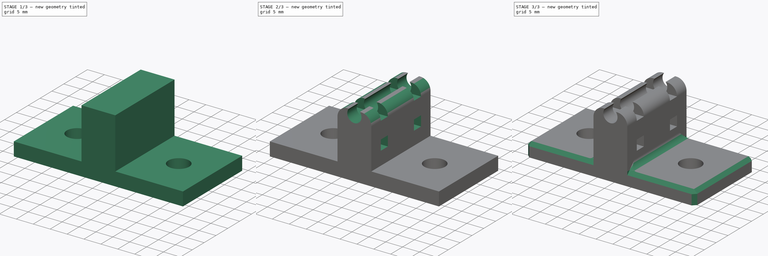
[diagram: build sequence overview — one tinted view per stage of 3, left to right]
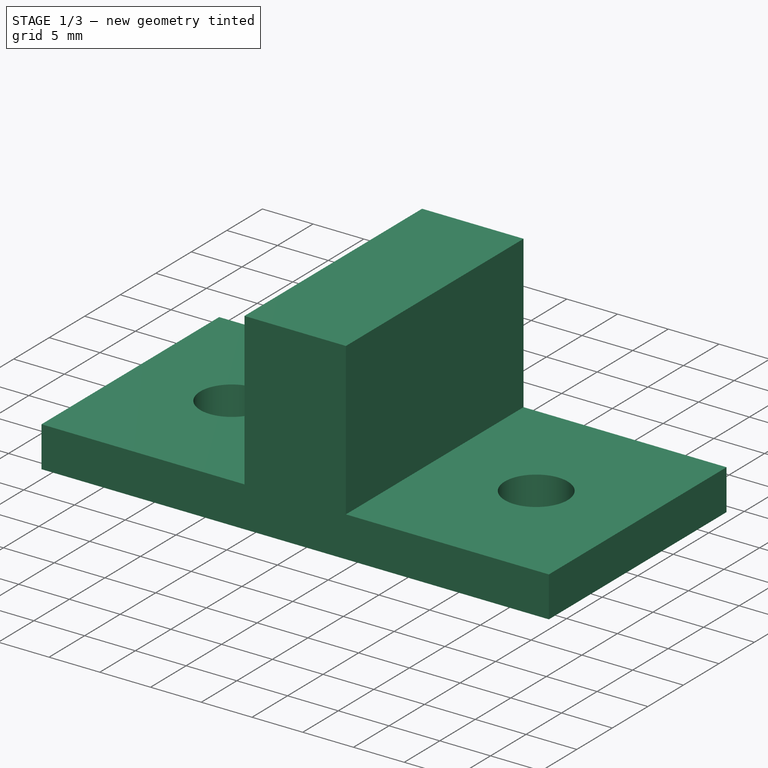
[diagram: stage 1 of 3 — iso view after this stage's code; geometry added in this stage tinted green]
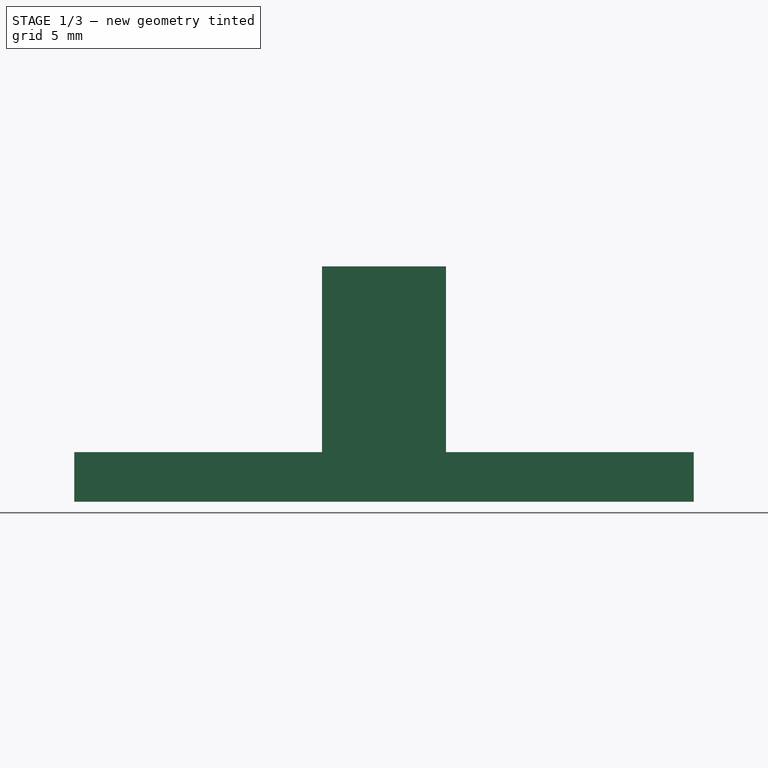
[diagram: stage 1 of 3 — front view after this stage's code; geometry added in this stage tinted green]
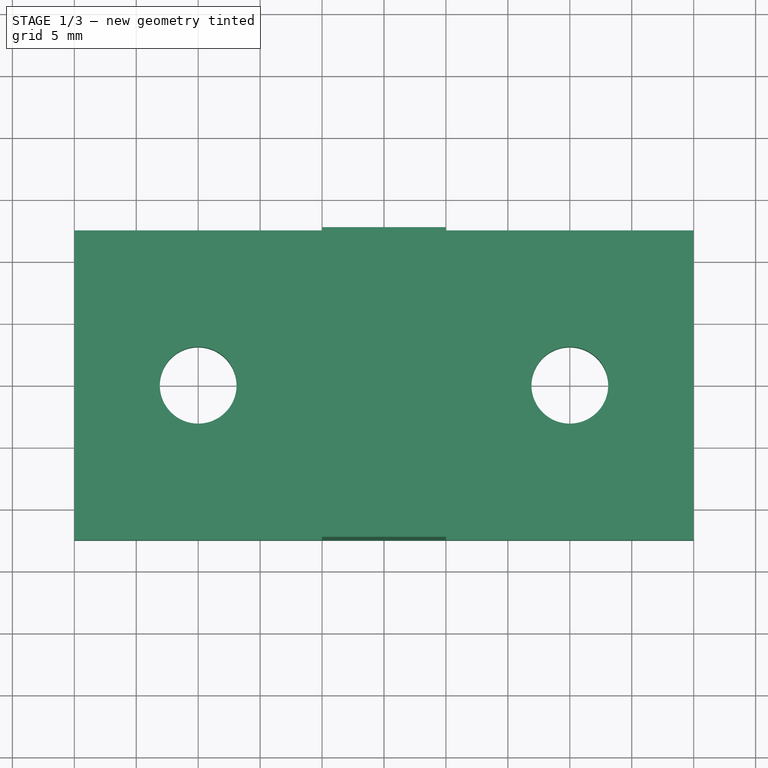
[diagram: stage 1 of 3 — top view after this stage's code; geometry added in this stage tinted green]
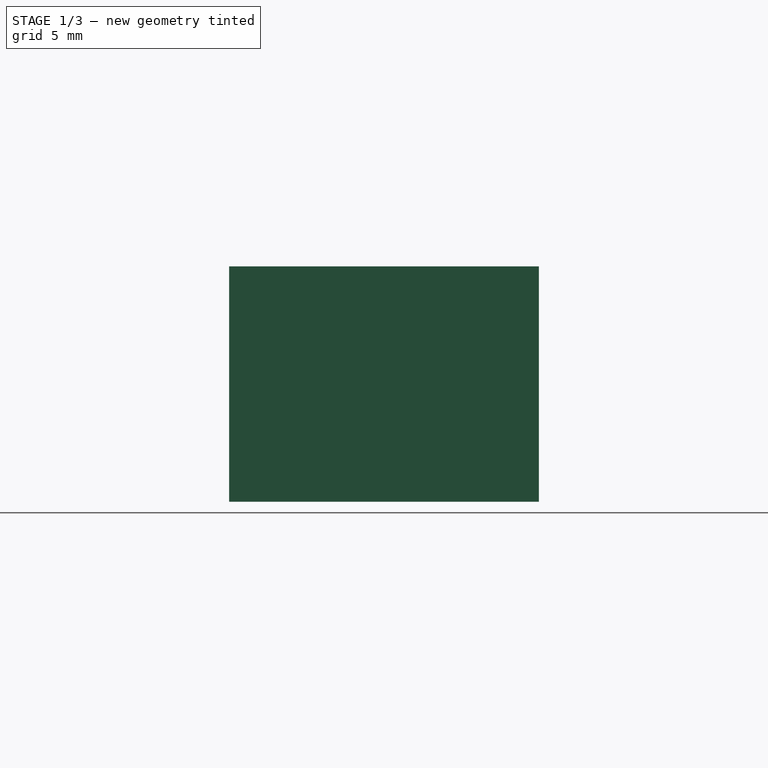
[diagram: stage 1 of 3 — right view after this stage's code; geometry added in this stage tinted green]
FCSTD DOCUMENT  (FreeCAD 0.20R)
Label: filament_tube_holder
License: All rights reserved
LicenseURL: http://en.wikipedia.org/wiki/All_rights_reserved
objects: Sketcher::SketchObject×4, PartDesign::Pad×2, PartDesign::Pocket×2, PartDesign::Fillet×2, PartDesign::Chamfer×1, PartDesign::Body×1
note: 19 computed .brp shape members not serialized (recipe doc carries the construction recipe); baked Part::Feature solids carry a one-line shape summary decoded from their .brp

FEATURE [Sketcher::SketchObject] Sketch
  FullyConstrained = true
  MapMode = 5
  Support = -> [XY_Plane]
  sketch-geometry (6):
    g0: LineSegment StartX=-25 StartY=12.5 StartZ=0 EndX=25 EndY=12.5 EndZ=0
    g1: LineSegment StartX=25 StartY=12.5 StartZ=0 EndX=25 EndY=-12.5 EndZ=0
    g2: LineSegment StartX=25 StartY=-12.5 StartZ=0 EndX=-25 EndY=-12.5 EndZ=0
    g3: LineSegment StartX=-25 StartY=-12.5 StartZ=0 EndX=-25 EndY=12.5 EndZ=0
    g4: Circle CenterX=-15 CenterY=0 CenterZ=0 NormalX=0 NormalY=0 NormalZ=1 AngleXU=0 Radius=3.1
    g5: Circle CenterX=15 CenterY=0 CenterZ=0 NormalX=0 NormalY=0 NormalZ=1 AngleXU=0 Radius=3.1
  constraints (15):
    c: Coincident(g0,g1)
    c: Coincident(g1,g2)
    c: Coincident(g2,g3)
    c: Coincident(g3,g0)
    c: Horizontal(g0)
    c: Vertical(g3)
    c: PointOnObject(g4,g-1)
    c: Symmetric(g5,g4,g-2)
    c: Equal(g5,g4)
    c: Diameter(g5) = 6.2
    c: Symmetric(g1,g2,g-2)
    c: Symmetric(g0,g1,g-1)
    c: DistanceY(g3,g3) = 25
    c: Distance(g4,g5) = 30
    c: Distance(g0) = 50
FEATURE [PartDesign::Pad] Pad
  Direction = (0,0,1)
  Length = 4
  Length2 = 10
  Profile = -> Sketch
  ReferenceAxis = -> Sketch [N_Axis]
  Type = 0
FEATURE [Sketcher::SketchObject] Sketch001
  ExternalGeometry = -> [Pad]
  FullyConstrained = true
  MapMode = 5
  Placement = pos=(0,0,4) rot=(0,0,1;0rad)
  Support = -> [Pad]
  sketch-geometry (4):
    g0: LineSegment StartX=-5 StartY=12.5 StartZ=0 EndX=5 EndY=12.5 EndZ=0
    g1: LineSegment StartX=5 StartY=12.5 StartZ=0 EndX=5 EndY=-12.5 EndZ=0
    g2: LineSegment StartX=5 StartY=-12.5 StartZ=0 EndX=-5 EndY=-12.5 EndZ=0
    g3: LineSegment StartX=-5 StartY=-12.5 StartZ=0 EndX=-5 EndY=12.5 EndZ=0
  constraints (11):
    c: Coincident(g0,g1)
    c: Coincident(g1,g2)
    c: Coincident(g2,g3)
    c: Coincident(g3,g0)
    c: Horizontal(g2)
    c: Vertical(g1)
    c: Vertical(g3)
    c: PointOnObject(g0,g-3)
    c: PointOnObject(g1,g-4)
    c: Symmetric(g0,g0,g-2)
    c: DistanceX(g0,g0) = 10
FEATURE [PartDesign::Pad] Pad001
  BaseFeature = -> Pad
  Direction = (0,0,1)
  Length = 15
  Length2 = 10
  Profile = -> Sketch001
  ReferenceAxis = -> Sketch001 [N_Axis]
  Type = 0
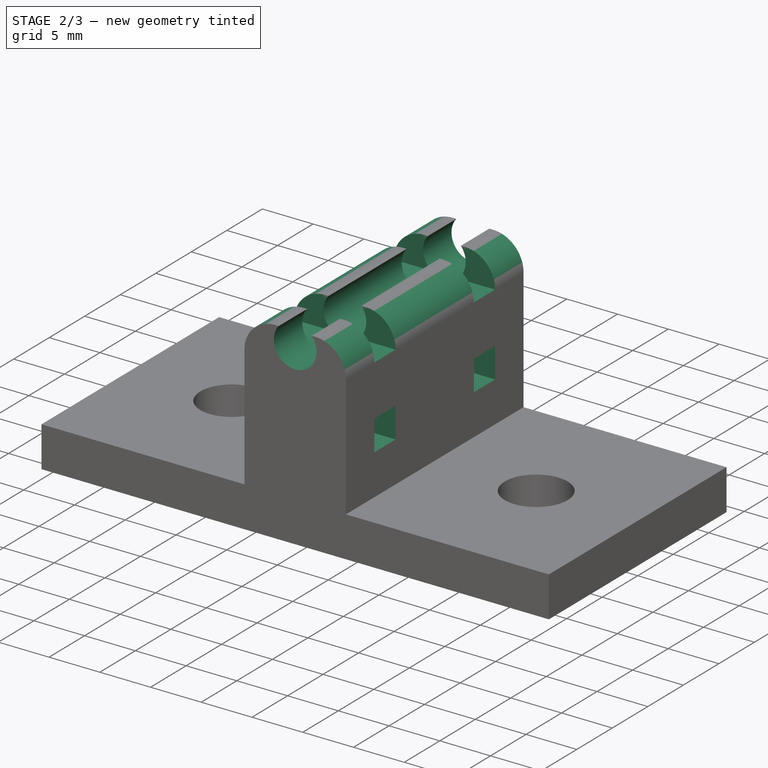
[diagram: stage 2 of 3 — iso view after this stage's code; geometry added in this stage tinted green]
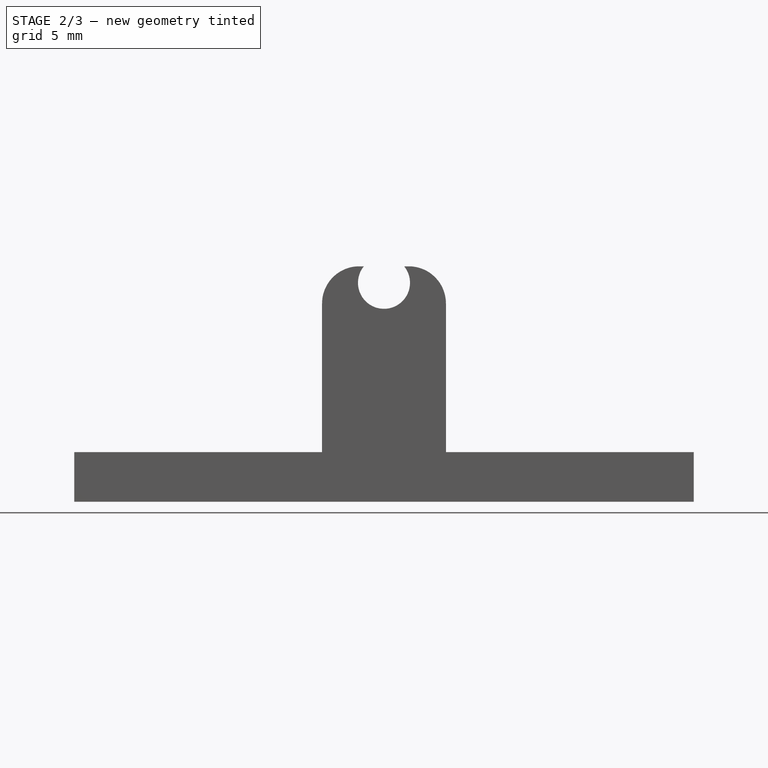
[diagram: stage 2 of 3 — front view after this stage's code; geometry added in this stage tinted green]
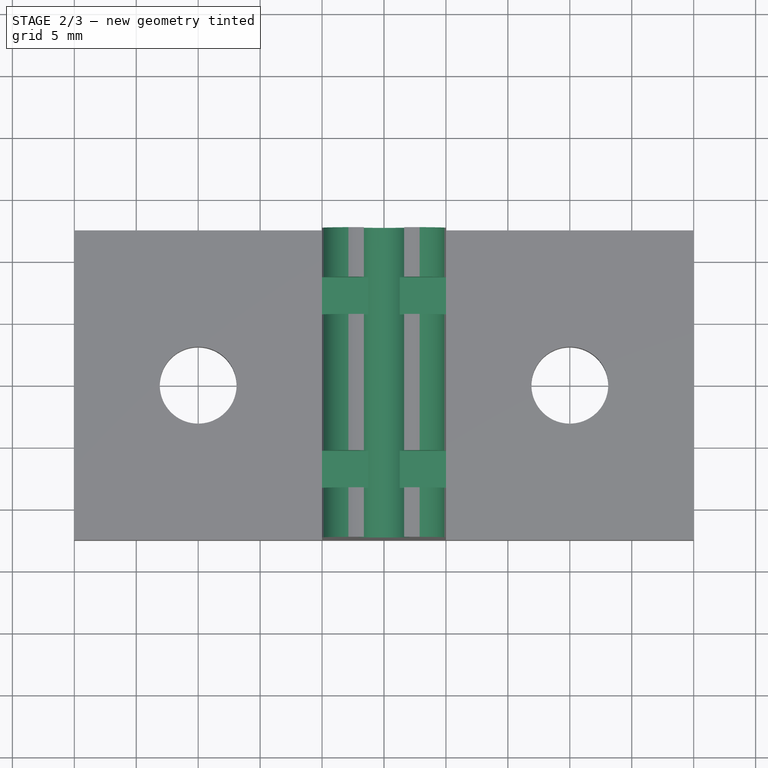
[diagram: stage 2 of 3 — top view after this stage's code; geometry added in this stage tinted green]
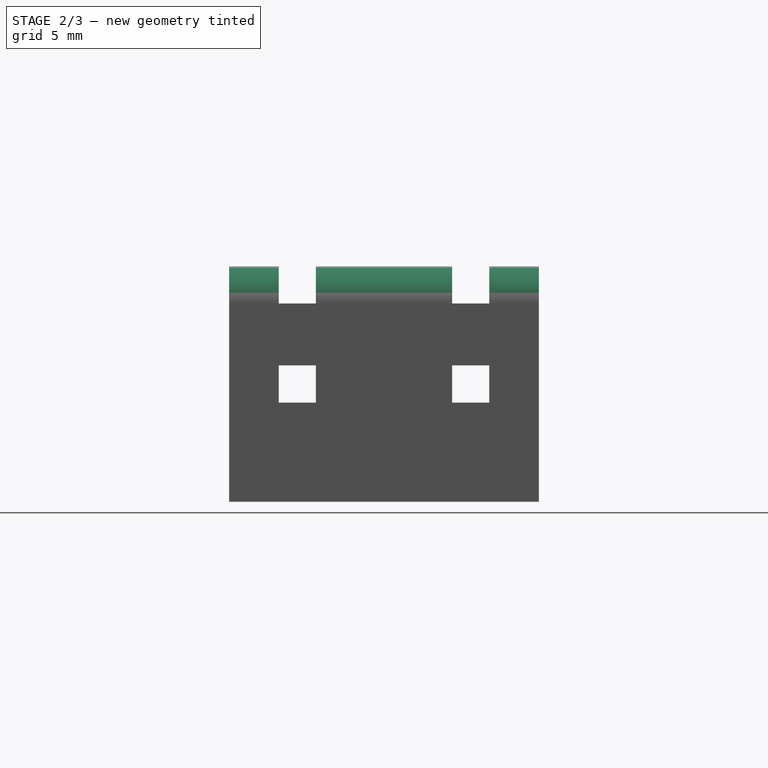
[diagram: stage 2 of 3 — right view after this stage's code; geometry added in this stage tinted green]
FEATURE [Sketcher::SketchObject] Sketch002
  FullyConstrained = false
  MapMode = 5
  Placement = pos=(0,-12.5,0) rot=(1,0,0;1.5708rad)
  Support = -> [Pad001]
  sketch-geometry (1):
    g0: Circle CenterX=0 CenterY=17.6698 CenterZ=0 NormalX=0 NormalY=0 NormalZ=1 AngleXU=0 Radius=2.1
  constraints (2):
    c: PointOnObject(g0,g-2)
    c: Diameter(g0) = 4.2
FEATURE [PartDesign::Pocket] Pocket
  BaseFeature = -> Pad001
  Direction = (0,1,-2e-16)
  Length = 5
  Length2 = 5
  Profile = -> Sketch002
  ReferenceAxis = -> Sketch002 [N_Axis]
  Type = 1
FEATURE [PartDesign::Fillet] Fillet
  Base = -> Pocket [Edge34,Edge32]
  BaseFeature = -> Pocket
  Radius = 3
  SupportTransform = false
  UseAllEdges = false
FEATURE [Sketcher::SketchObject] Sketch003
  ExternalGeometry = -> [Fillet]
  FullyConstrained = true
  MapMode = 5
  Placement = pos=(5,0,0) rot=(0.57735,0.57735,0.57735;2.0944rad)
  Support = -> [Fillet]
  sketch-geometry (17):
    g0: LineSegment StartX=-8.5 StartY=19 StartZ=0 EndX=-5.5 EndY=19 EndZ=0
    g1: LineSegment StartX=-5.5 StartY=19 StartZ=0 EndX=-5.5 EndY=16 EndZ=0
    g2: LineSegment StartX=-5.5 StartY=16 StartZ=0 EndX=-8.5 EndY=16 EndZ=0
    g3: LineSegment StartX=-8.5 StartY=16 StartZ=0 EndX=-8.5 EndY=19 EndZ=0
    g4: LineSegment StartX=5.5 StartY=19 StartZ=0 EndX=8.5 EndY=19 EndZ=0
    g5: LineSegment StartX=8.5 StartY=19 StartZ=0 EndX=8.5 EndY=16 EndZ=0
    g6: LineSegment StartX=8.5 StartY=16 StartZ=0 EndX=5.5 EndY=16 EndZ=0
    g7: LineSegment StartX=5.5 StartY=16 StartZ=0 EndX=5.5 EndY=19 EndZ=0
    g8: LineSegment StartX=-8.5 StartY=11 StartZ=0 EndX=-5.5 EndY=11 EndZ=0
    g9: LineSegment StartX=-5.5 StartY=11 StartZ=0 EndX=-5.5 EndY=8 EndZ=0
    g10: LineSegment StartX=-5.5 StartY=8 StartZ=0 EndX=-8.5 EndY=8 EndZ=0
    g11: LineSegment StartX=-8.5 StartY=8 StartZ=0 EndX=-8.5 EndY=11 EndZ=0
    g12: LineSegment StartX=5.5 StartY=11 StartZ=0 EndX=8.5 EndY=11 EndZ=0
    g13: LineSegment StartX=8.5 StartY=11 StartZ=0 EndX=8.5 EndY=8 EndZ=0
    g14: LineSegment StartX=8.5 StartY=8 StartZ=0 EndX=5.5 EndY=8 EndZ=0
    g15: LineSegment StartX=5.5 StartY=8 StartZ=0 EndX=5.5 EndY=11 EndZ=0
    g16: LineSegment StartX=-8.5 StartY=16 StartZ=0 EndX=-8.5 EndY=11 EndZ=0
  constraints (48):
    c: Coincident(g0,g1)
    c: Coincident(g1,g2)
    c: Coincident(g2,g3)
    c: Coincident(g3,g0)
    c: Horizontal(g0)
    c: Horizontal(g2)
    c: Vertical(g1)
    c: Vertical(g3)
    c: PointOnObject(g0,g-3)
    c: Coincident(g4,g5)
    c: Coincident(g5,g6)
    c: Coincident(g6,g7)
    c: Coincident(g7,g4)
    c: Horizontal(g4)
    c: Horizontal(g6)
    c: Vertical(g5)
    c: Vertical(g7)
    c: PointOnObject(g4,g-3)
    c: Equal(g6,g2)
    c: Symmetric(g1,g6,g-2)
    c: Distance(g6,g1) = 11
    c: DistanceY(g3,g3) = 3
    c: DistanceX(g2,g2) = 3
    c: Coincident(g8,g9)
    c: Coincident(g9,g10)
    c: Coincident(g10,g11)
    c: Coincident(g11,g8)
    c: Horizontal(g8)
    c: Horizontal(g10)
    c: Vertical(g9)
    c: Vertical(g11)
    c: Coincident(g12,g13)
    c: Coincident(g13,g14)
    c: Coincident(g14,g15)
    c: Coincident(g15,g12)
    c: Horizontal(g12)
    c: Horizontal(g14)
    c: Vertical(g13)
    c: Vertical(g15)
    c: Symmetric(g8,g12,g-2)
    c: Equal(g8,g9)
    c: Equal(g9,g15)
    c: Equal(g15,g12)
    c: DistanceX(g14,g14) = 3
    c: Coincident(g16,g8)
    c: Vertical(g16)
    c: Coincident(g16,g2)
    c: DistanceY(g16,g16) = 5
FEATURE [PartDesign::Pocket] Pocket001
  BaseFeature = -> Fillet
  Direction = (-1,0,0)
  Length = 5
  Length2 = 5
  Profile = -> Sketch003
  ReferenceAxis = -> Sketch003 [N_Axis]
  Type = 1
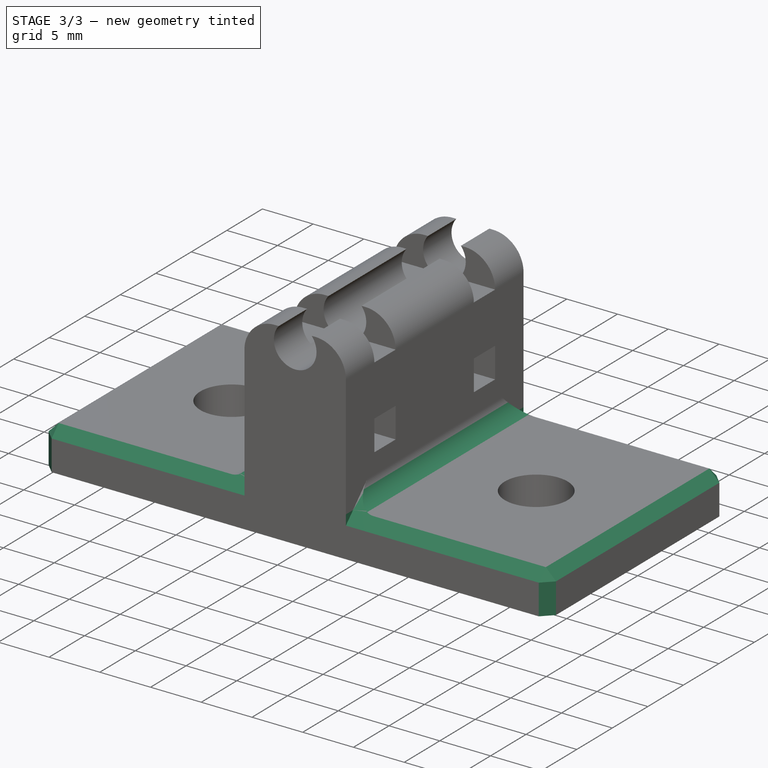
[diagram: stage 3 of 3 — iso view after this stage's code; geometry added in this stage tinted green]
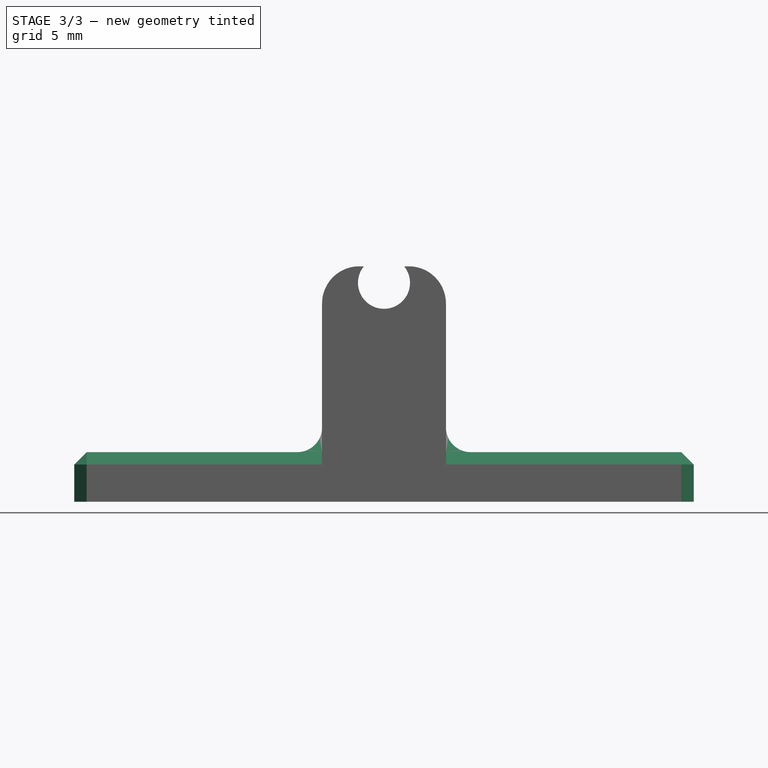
[diagram: stage 3 of 3 — front view after this stage's code; geometry added in this stage tinted green]
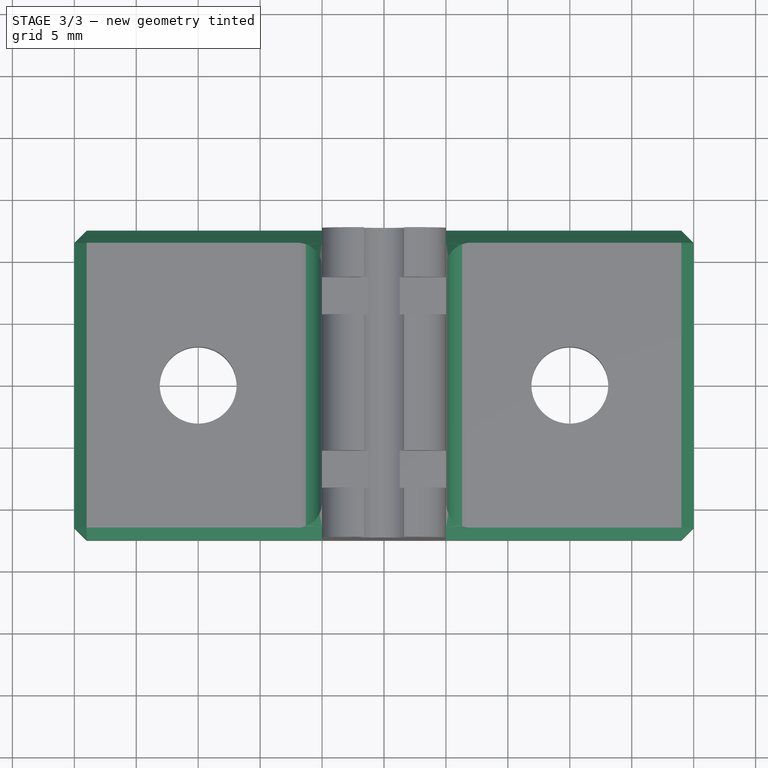
[diagram: stage 3 of 3 — top view after this stage's code; geometry added in this stage tinted green]
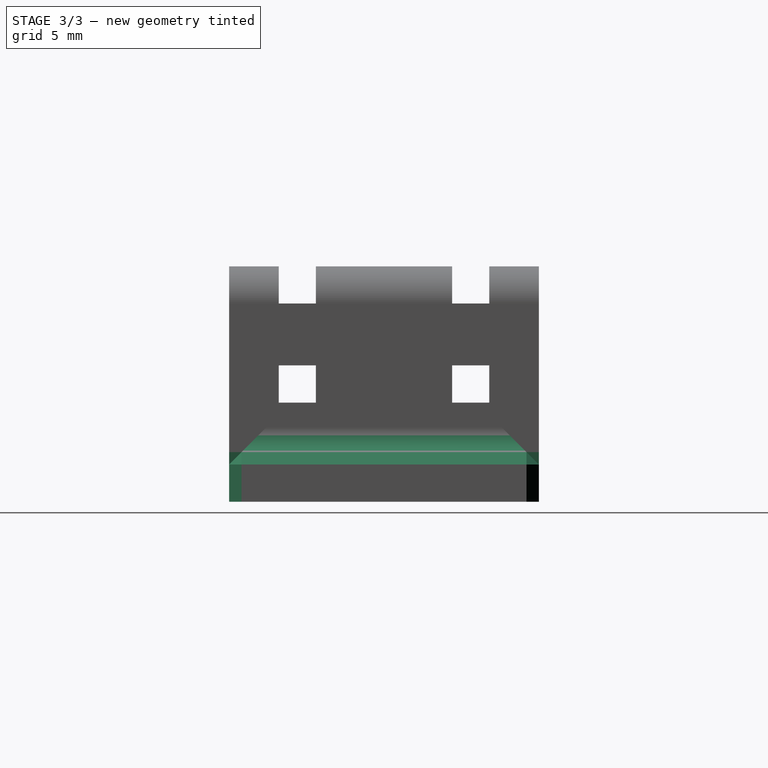
[diagram: stage 3 of 3 — right view after this stage's code; geometry added in this stage tinted green]
FEATURE [PartDesign::Chamfer] Chamfer
  Angle = 45
  Base = -> Pocket001 [Edge98,Edge101,Edge28,Edge27,Edge30,Edge100,Edge106,Edge73,Edge72,Edge31]
  BaseFeature = -> Pocket001
  ChamferType = 0
  FlipDirection = false
  Size = 1
  Size2 = 1
  SupportTransform = false
  UseAllEdges = false
FEATURE [PartDesign::Fillet] Fillet001
  Base = -> Chamfer [Edge104,Edge1]
  BaseFeature = -> Chamfer
  Radius = 2
  SupportTransform = false
  UseAllEdges = false
FEATURE [PartDesign::Body] Body
  Group = -> [Sketch,Pad,Sketch001,Pad001,Sketch002,Pocket,Fillet,Sketch003,Pocket001,Chamfer,Fillet001]
  Origin = -> Origin
  Tip = -> Fillet001
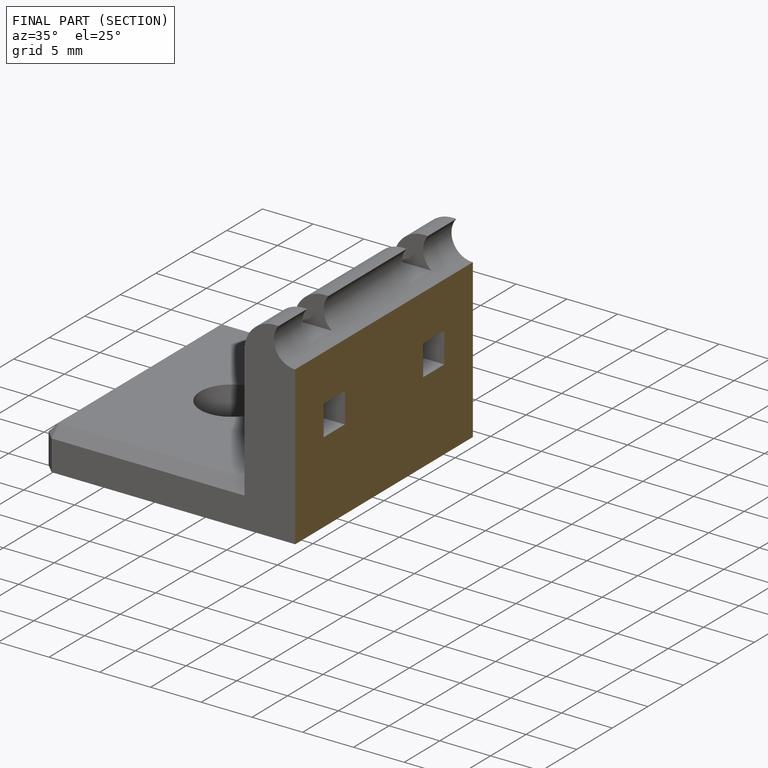
[diagram: finished part — half-section view (interior)]
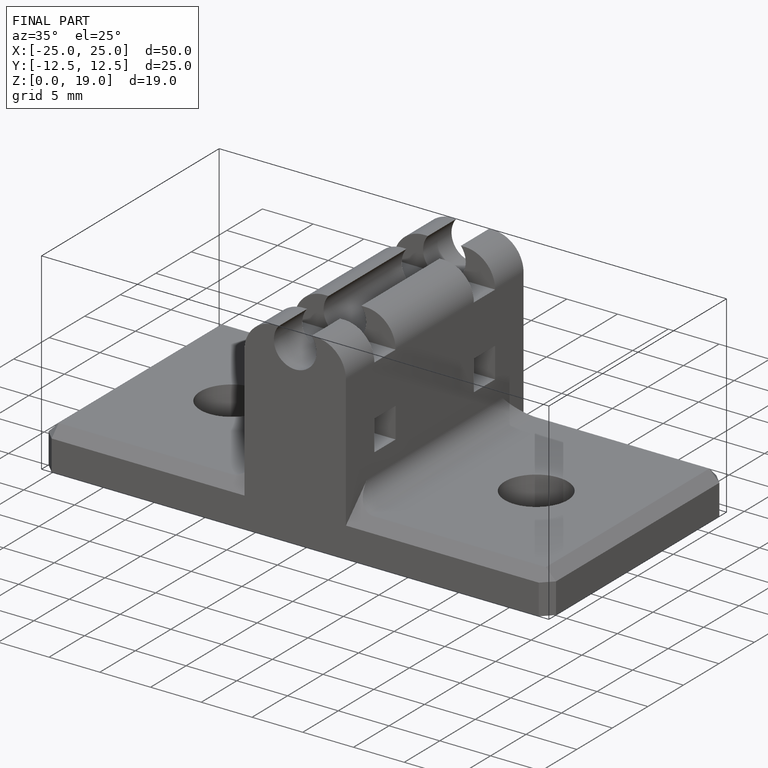
[diagram: finished part — iso view with bounding-box wireframe]
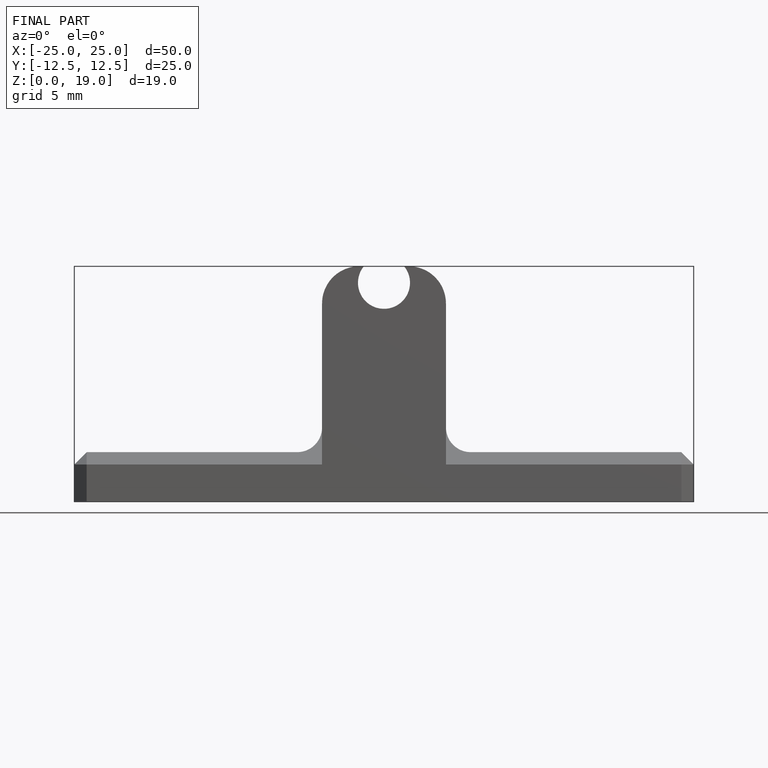
[diagram: finished part — front view with bounding-box wireframe]
